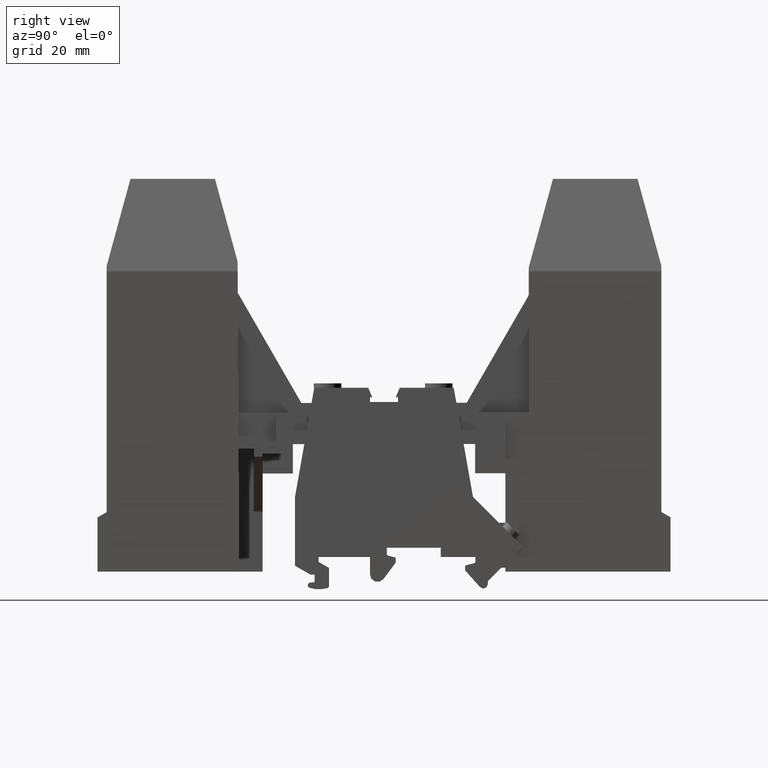
[diagram: clean part render]
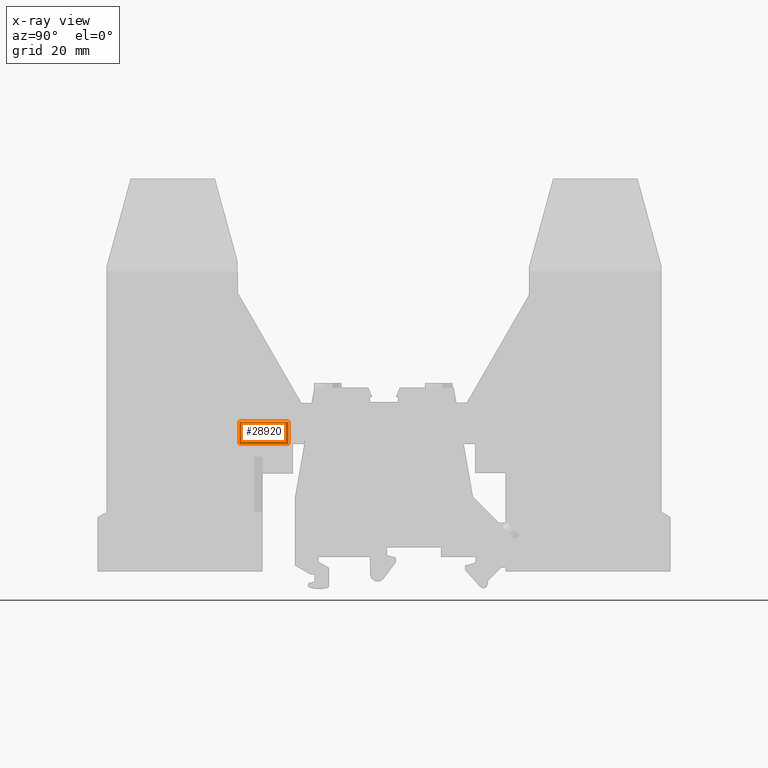
[diagram: x-ray — body ghosted, one internal face saturated and labeled with its STEP entity id]
A machine part, right view, then the same camera in x-ray: the body is ghosted and one INTERNAL B-rep face — a face not visible from any outside direction — is saturated and labeled: STEP entity #28920.
In plain terms, the highlighted planar face has unit normal (1, -0, -0).
Its self-contained STEP definition (entity closure, byte-faithful):
#25560=CARTESIAN_POINT('',(-126.48365504307,427.938955563671,-8.249));
#25570=VERTEX_POINT('',#25560);
#26000=CARTESIAN_POINT('',(-115.425636905533,427.938955563671,-8.249));
#26010=VERTEX_POINT('',#26000);
#26040=CARTESIAN_POINT('',(-295.967274028122,427.938955563671,
-8.24899999999975));
#26050=DIRECTION('',(-1.,5.55111481107803E-17,1.4176154043005E-15));
#26060=VECTOR('',#26050,1.);
#26070=LINE('',#26040,#26060);
#26080=EDGE_CURVE('',#26010,#25570,#26070,.T.);
#26240=CARTESIAN_POINT('',(-115.425636905533,432.938955563671,-8.249));
#26250=VERTEX_POINT('',#26240);
#26420=CARTESIAN_POINT('',(-126.48365504307,432.938955563671,-8.249));
#26430=VERTEX_POINT('',#26420);
#26460=CARTESIAN_POINT('',(-295.967274028122,432.938955563671,-8.249));
#26470=DIRECTION('',(-1.,6.7169021754704E-17,-3.47006721970382E-18));
#26480=VECTOR('',#26470,1.);
#26490=LINE('',#26460,#26480);
#26500=EDGE_CURVE('',#26250,#26430,#26490,.T.);
#28710=CARTESIAN_POINT('',(-82.6836550430698,432.938955563671,-8.249));
#28720=DIRECTION('',(3.47006721970382E-18,-1.73472347597681E-18,-1.));
#28730=DIRECTION('',(1.,-5.55111481107803E-17,3.47006721970382E-18));
#28740=AXIS2_PLACEMENT_3D('',#28710,#28720,#28730);
#28750=PLANE('',#28740);
#28760=CARTESIAN_POINT('',(-115.425636905533,-6.68631816580501E-14,
-8.249));
#28770=DIRECTION('',(-6.7169021754704E-17,-1.,1.73472347597681E-18));
#28780=VECTOR('',#28770,1.);
#28790=LINE('',#28760,#28780);
#28800=EDGE_CURVE('',#26250,#26010,#28790,.T.);
#28810=ORIENTED_EDGE('',*,*,#28800,.T.);
#28820=ORIENTED_EDGE('',*,*,#26500,.F.);
#28830=CARTESIAN_POINT('',(-126.48365504307,429.938955563671,-8.249));
#28840=DIRECTION('',(-5.55111481107803E-17,-1.,1.73472347597681E-18));
#28850=VECTOR('',#28840,1.);
#28860=LINE('',#28830,#28850);
#28870=EDGE_CURVE('',#26430,#25570,#28860,.T.);
#28880=ORIENTED_EDGE('',*,*,#28870,.F.);
#28890=ORIENTED_EDGE('',*,*,#26080,.T.);
#28900=EDGE_LOOP('',(#28890,#28880,#28820,#28810));
#28910=FACE_OUTER_BOUND('',#28900,.T.);
#28920=ADVANCED_FACE('',(#28910),#28750,.T.);